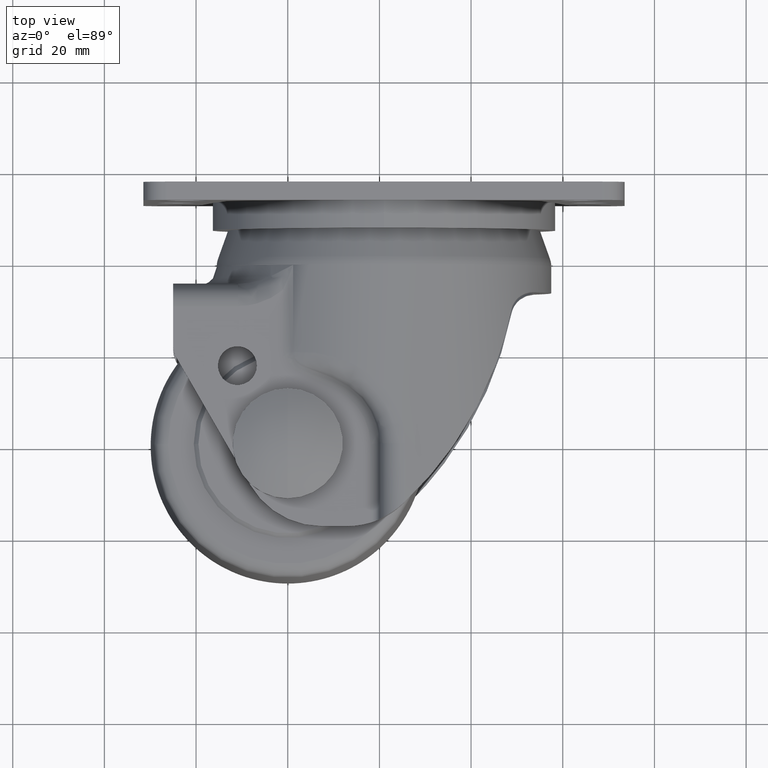
[diagram: clean part render]
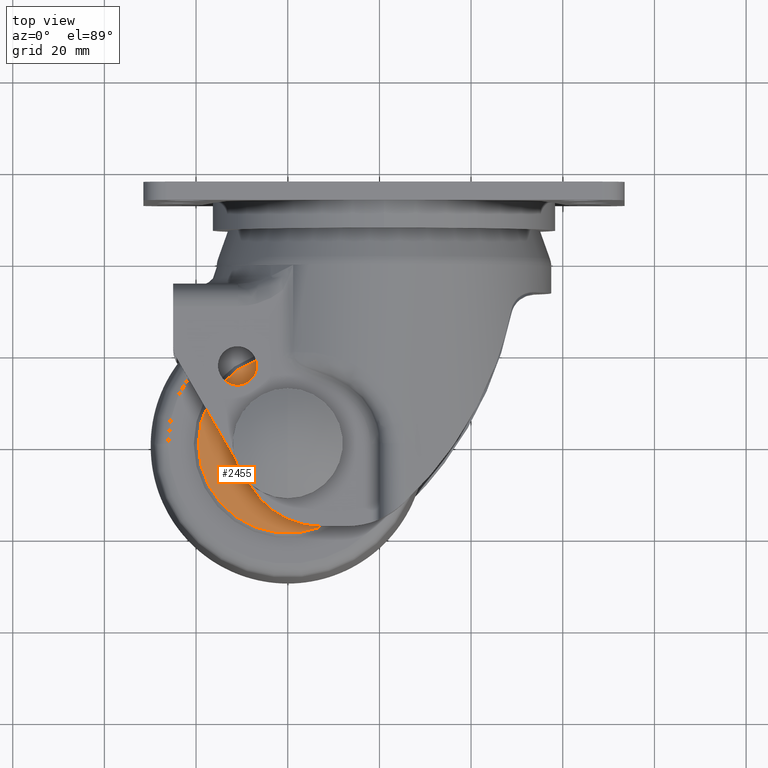
[diagram: same view with one face highlighted and labeled with its STEP entity id]
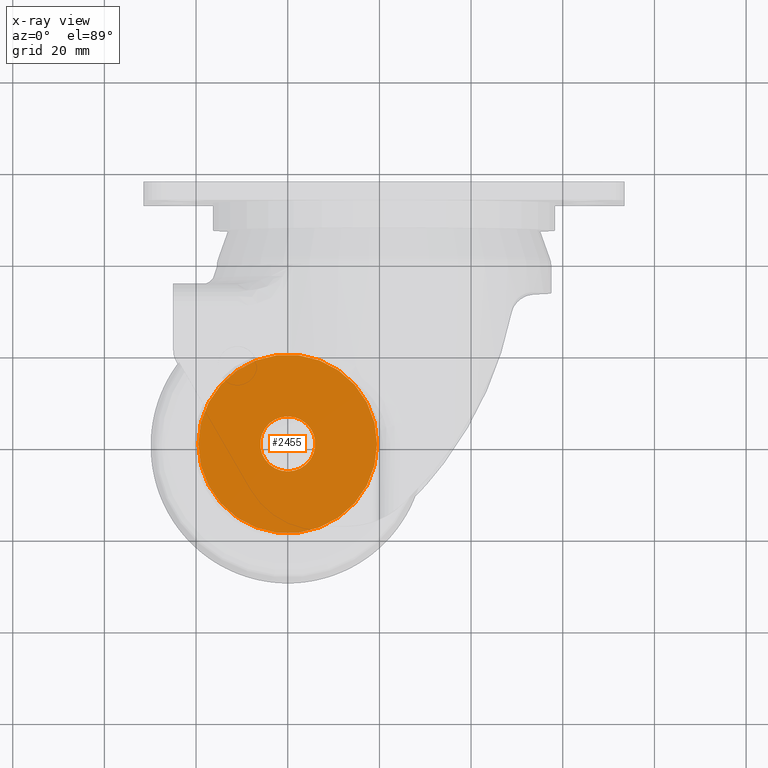
[diagram: x-ray of the same camera — body ghosted, the highlighted face saturated]
A machine part, top view. The second image highlights one B-rep face of the part: STEP entity #2455.
The next image is the same camera in x-ray: the body ghosted, the highlighted face saturated — about 0% of this face is hidden behind the body in this view.
In plain terms, the highlighted planar face has unit normal (0, 0, 1).
Its self-contained STEP definition (entity closure, byte-faithful):
#340 = DIRECTION ( 'NONE',  ( -1.000000000000000000, 0.000000000000000000, 0.000000000000000000 ) ) ;
#445 = CARTESIAN_POINT ( 'NONE',  ( 0.000000000000000000, -7.629018770021448822E-15, 25.00000000000000000 ) ) ;
#764 = CARTESIAN_POINT ( 'NONE',  ( 0.000000000000000000, 0.000000000000000000, 25.00000000000000000 ) ) ;
#896 = ORIENTED_EDGE ( 'NONE', *, *, #5072, .F. ) ;
#1106 = CARTESIAN_POINT ( 'NONE',  ( 19.50000000000000355, 2.449293598294706907E-15, 25.00000000000000000 ) ) ;
#1130 = PLANE ( 'NONE',  #1517 ) ;
#1414 = CIRCLE ( 'NONE', #5098, 19.50000000000000355 ) ;
#1481 = ORIENTED_EDGE ( 'NONE', *, *, #5273, .F. ) ;
#1517 = AXIS2_PLACEMENT_3D ( 'NONE', #764, #6273, #2825 ) ;
#1783 = VERTEX_POINT ( 'NONE', #1106 ) ;
#1911 = CARTESIAN_POINT ( 'NONE',  ( 0.000000000000000000, 5.999999999999987566, 25.00000000000000000 ) ) ;
#2083 = VERTEX_POINT ( 'NONE', #6098 ) ;
#2455 = ADVANCED_FACE ( 'NONE', ( #4644, #5660 ), #1130, .T. ) ;
#2526 = DIRECTION ( 'NONE',  ( 0.000000000000000000, 0.000000000000000000, 1.000000000000000000 ) ) ;
#2590 = CARTESIAN_POINT ( 'NONE',  ( 0.000000000000000000, -7.629018770021448822E-15, 25.00000000000000000 ) ) ;
#2763 = DIRECTION ( 'NONE',  ( -1.000000000000000000, 0.000000000000000000, 0.000000000000000000 ) ) ;
#2825 = DIRECTION ( 'NONE',  ( 1.000000000000000000, 0.000000000000000000, -0.000000000000000000 ) ) ;
#2863 = CARTESIAN_POINT ( 'NONE',  ( 0.000000000000000000, 0.000000000000000000, 25.00000000000000000 ) ) ;
#3342 = AXIS2_PLACEMENT_3D ( 'NONE', #445, #2526, #3590 ) ;
#3360 = ORIENTED_EDGE ( 'NONE', *, *, #6394, .F. ) ;
#3590 = DIRECTION ( 'NONE',  ( 1.000000000000000000, 0.000000000000000000, 0.000000000000000000 ) ) ;
#3765 = CIRCLE ( 'NONE', #4398, 19.50000000000000355 ) ;
#3791 = EDGE_LOOP ( 'NONE', ( #896, #6157 ) ) ;
#4103 = DIRECTION ( 'NONE',  ( -0.000000000000000000, -0.000000000000000000, -1.000000000000000000 ) ) ;
#4259 = AXIS2_PLACEMENT_3D ( 'NONE', #2590, #4735, #5183 ) ;
#4398 = AXIS2_PLACEMENT_3D ( 'NONE', #6029, #4103, #2763 ) ;
#4644 = FACE_BOUND ( 'NONE', #5386, .T. ) ;
#4726 = VERTEX_POINT ( 'NONE', #1911 ) ;
#4735 = DIRECTION ( 'NONE',  ( 0.000000000000000000, 0.000000000000000000, 1.000000000000000000 ) ) ;
#5072 = EDGE_CURVE ( 'NONE', #5388, #1783, #1414, .T. ) ;
#5098 = AXIS2_PLACEMENT_3D ( 'NONE', #2863, #5433, #340 ) ;
#5183 = DIRECTION ( 'NONE',  ( 1.000000000000000000, 0.000000000000000000, 0.000000000000000000 ) ) ;
#5273 = EDGE_CURVE ( 'NONE', #4726, #2083, #5527, .T. ) ;
#5328 = CIRCLE ( 'NONE', #3342, 5.999999999999995559 ) ;
#5356 = CARTESIAN_POINT ( 'NONE',  ( -19.50000000000000355, 0.000000000000000000, 25.00000000000000000 ) ) ;
#5386 = EDGE_LOOP ( 'NONE', ( #1481, #3360 ) ) ;
#5388 = VERTEX_POINT ( 'NONE', #5356 ) ;
#5433 = DIRECTION ( 'NONE',  ( -0.000000000000000000, -0.000000000000000000, -1.000000000000000000 ) ) ;
#5527 = CIRCLE ( 'NONE', #4259, 5.999999999999995559 ) ;
#5660 = FACE_OUTER_BOUND ( 'NONE', #3791, .T. ) ;
#6029 = CARTESIAN_POINT ( 'NONE',  ( 0.000000000000000000, 0.000000000000000000, 25.00000000000000000 ) ) ;
#6098 = CARTESIAN_POINT ( 'NONE',  ( 7.347880794884114806E-16, -6.000000000000003553, 25.00000000000000000 ) ) ;
#6110 = EDGE_CURVE ( 'NONE', #1783, #5388, #3765, .T. ) ;
#6157 = ORIENTED_EDGE ( 'NONE', *, *, #6110, .F. ) ;
#6273 = DIRECTION ( 'NONE',  ( 0.000000000000000000, 0.000000000000000000, 1.000000000000000000 ) ) ;
#6394 = EDGE_CURVE ( 'NONE', #2083, #4726, #5328, .T. ) ;